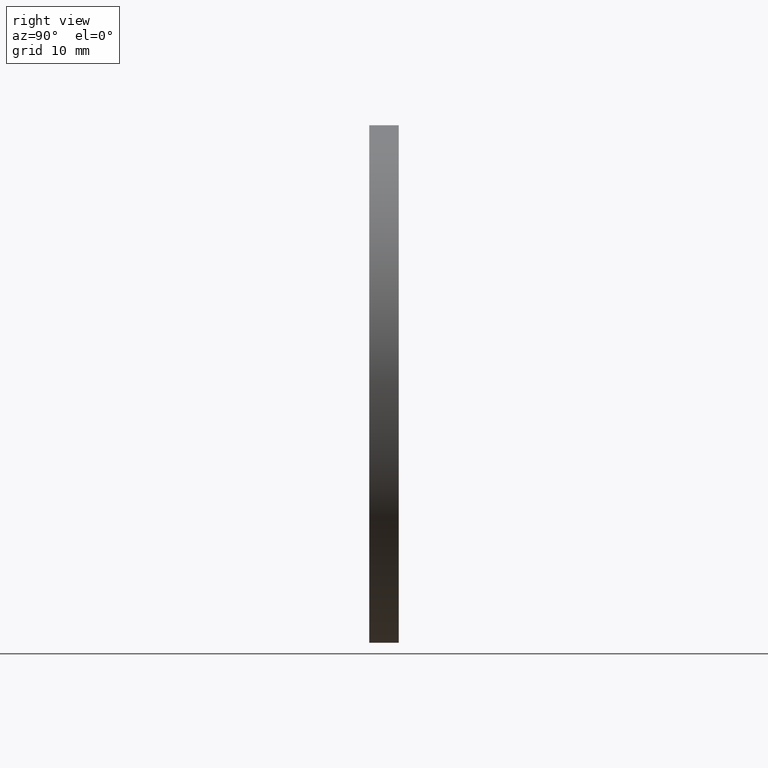
[diagram: clean part render]
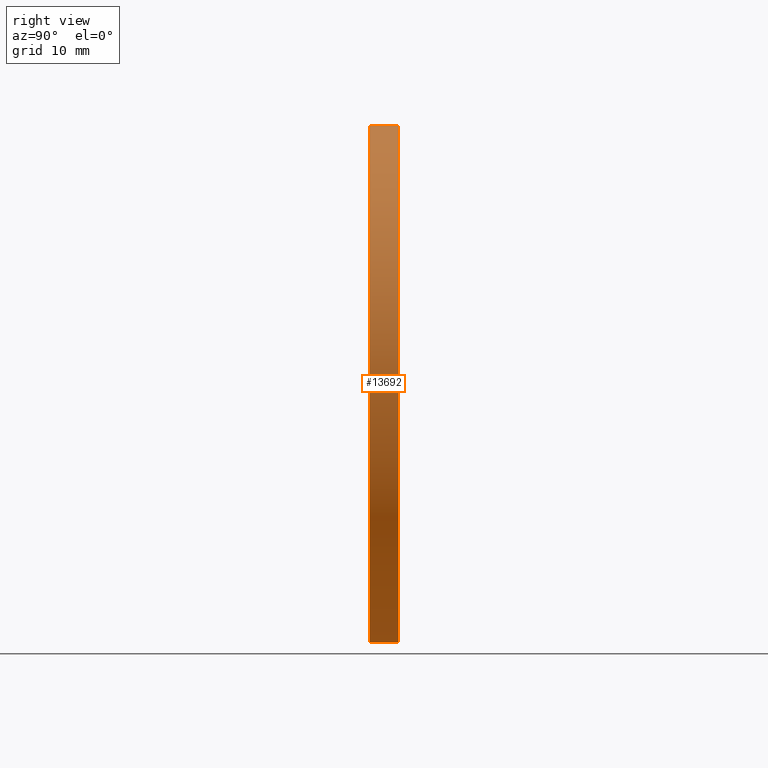
[diagram: same view with one face highlighted and labeled with its STEP entity id]
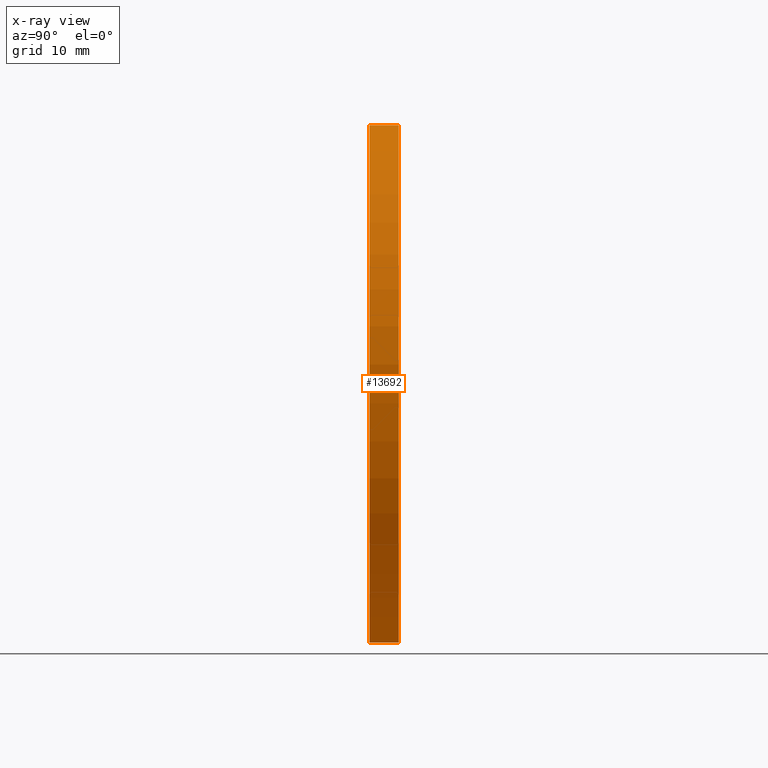
[diagram: x-ray of the same camera — body ghosted, the highlighted face saturated]
A machine part, right view. The second image highlights one B-rep face of the part: STEP entity #13692.
The next image is the same camera in x-ray: the body ghosted, the highlighted face saturated — about 0% of this face is hidden behind the body in this view.
In plain terms, the highlighted cylindrical surface (partial cylindrical patch) has radius 35 mm, axis along (-0, -1, -0).
Its self-contained STEP definition (entity closure, byte-faithful):
#90 = CARTESIAN_POINT ( 'NONE',  ( 4.286263797015737285E-15, 4.000000000000000000, 35.00000000000000711 ) ) ;
#669 = VERTEX_POINT ( 'NONE', #9301 ) ;
#966 = DIRECTION ( 'NONE',  ( 0.000000000000000000, 0.000000000000000000, 1.000000000000000000 ) ) ;
#1671 = FACE_OUTER_BOUND ( 'NONE', #6495, .T. ) ;
#1873 = CARTESIAN_POINT ( 'NONE',  ( 0.000000000000000000, 4.000000000000000000, -35.00000000000000711 ) ) ;
#3172 = VERTEX_POINT ( 'NONE', #12434 ) ;
#4302 = DIRECTION ( 'NONE',  ( -0.000000000000000000, -1.000000000000000000, -0.000000000000000000 ) ) ;
#4916 = EDGE_CURVE ( 'NONE', #669, #6764, #10159, .T. ) ;
#5885 = CARTESIAN_POINT ( 'NONE',  ( 4.286263797015737285E-15, 4.000000000000000000, 35.00000000000000711 ) ) ;
#6401 = DIRECTION ( 'NONE',  ( -0.000000000000000000, -1.000000000000000000, -0.000000000000000000 ) ) ;
#6463 = EDGE_CURVE ( 'NONE', #3172, #6764, #9511, .T. ) ;
#6495 = EDGE_LOOP ( 'NONE', ( #13783, #10615, #12477, #14821 ) ) ;
#6539 = CARTESIAN_POINT ( 'NONE',  ( 0.000000000000000000, 0.000000000000000000, -35.00000000000000711 ) ) ;
#6764 = VERTEX_POINT ( 'NONE', #6539 ) ;
#6808 = LINE ( 'NONE', #5885, #14488 ) ;
#9301 = CARTESIAN_POINT ( 'NONE',  ( 4.286263797015737285E-15, 0.000000000000000000, 35.00000000000000711 ) ) ;
#9511 = LINE ( 'NONE', #1873, #9928 ) ;
#9856 = CIRCLE ( 'NONE', #16218, 35.00000000000000711 ) ;
#9875 = DIRECTION ( 'NONE',  ( 0.000000000000000000, 1.000000000000000000, 0.000000000000000000 ) ) ;
#9928 = VECTOR ( 'NONE', #6401, 1000.000000000000000 ) ;
#10159 = CIRCLE ( 'NONE', #16294, 35.00000000000000711 ) ;
#10244 = AXIS2_PLACEMENT_3D ( 'NONE', #14579, #4302, #13263 ) ;
#10615 = ORIENTED_EDGE ( 'NONE', *, *, #11202, .T. ) ;
#10785 = CARTESIAN_POINT ( 'NONE',  ( 0.000000000000000000, 4.000000000000000000, 0.000000000000000000 ) ) ;
#11044 = EDGE_CURVE ( 'NONE', #14961, #3172, #9856, .T. ) ;
#11202 = EDGE_CURVE ( 'NONE', #14961, #669, #6808, .T. ) ;
#12434 = CARTESIAN_POINT ( 'NONE',  ( 0.000000000000000000, 4.000000000000000000, -35.00000000000000711 ) ) ;
#12477 = ORIENTED_EDGE ( 'NONE', *, *, #4916, .T. ) ;
#13263 = DIRECTION ( 'NONE',  ( 0.000000000000000000, 0.000000000000000000, -1.000000000000000000 ) ) ;
#13620 = CYLINDRICAL_SURFACE ( 'NONE', #10244, 35.00000000000000711 ) ;
#13692 = ADVANCED_FACE ( 'NONE', ( #1671 ), #13620, .T. ) ;
#13783 = ORIENTED_EDGE ( 'NONE', *, *, #11044, .F. ) ;
#14488 = VECTOR ( 'NONE', #14968, 1000.000000000000000 ) ;
#14579 = CARTESIAN_POINT ( 'NONE',  ( 0.000000000000000000, 4.000000000000000000, 0.000000000000000000 ) ) ;
#14821 = ORIENTED_EDGE ( 'NONE', *, *, #6463, .F. ) ;
#14961 = VERTEX_POINT ( 'NONE', #90 ) ;
#14968 = DIRECTION ( 'NONE',  ( -0.000000000000000000, -1.000000000000000000, -0.000000000000000000 ) ) ;
#15125 = CARTESIAN_POINT ( 'NONE',  ( 0.000000000000000000, 0.000000000000000000, 0.000000000000000000 ) ) ;
#16025 = DIRECTION ( 'NONE',  ( 0.000000000000000000, 0.000000000000000000, 1.000000000000000000 ) ) ;
#16079 = DIRECTION ( 'NONE',  ( 0.000000000000000000, 1.000000000000000000, 0.000000000000000000 ) ) ;
#16218 = AXIS2_PLACEMENT_3D ( 'NONE', #10785, #16079, #16025 ) ;
#16294 = AXIS2_PLACEMENT_3D ( 'NONE', #15125, #9875, #966 ) ;